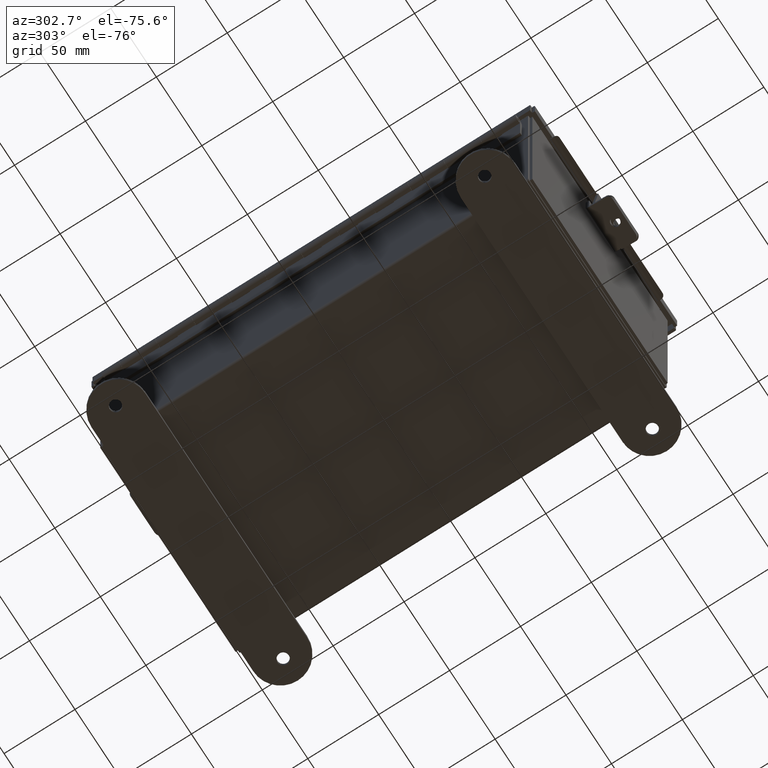
[diagram: clean part render]
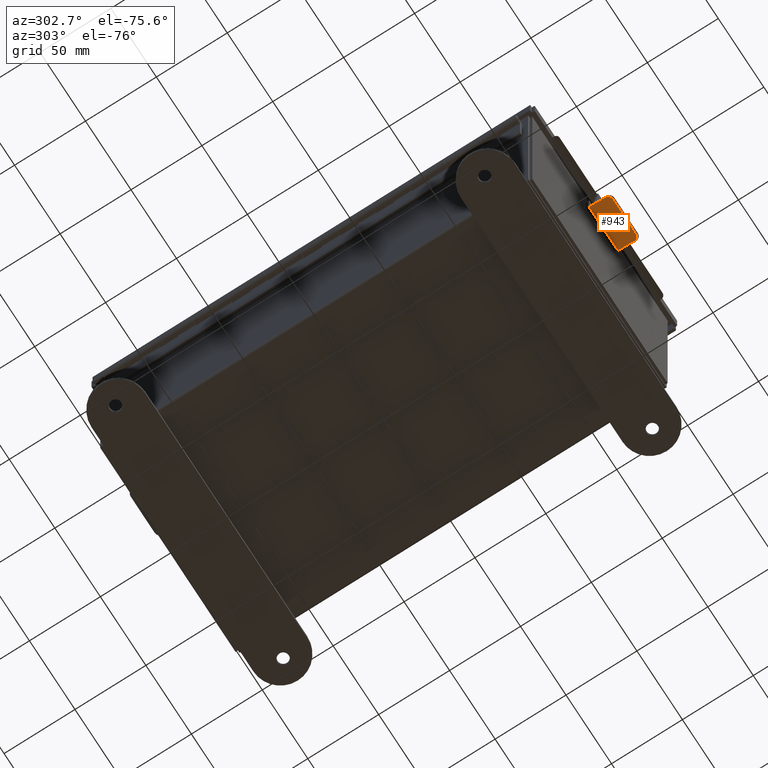
[diagram: same view with one face highlighted and labeled with its STEP entity id]
A machine part, auxiliary view. The second image highlights one B-rep face of the part: STEP entity #943.
In plain terms, the highlighted planar face has unit normal (0, -0.1564, 0.9877).
Its self-contained STEP definition (entity closure, byte-faithful):
#190 = VERTEX_POINT ( 'NONE', #11788 ) ;
#323 = CARTESIAN_POINT ( 'NONE',  ( 0.0000000000000000000, -0.3424819692434683000, 0.3187306097747185700 ) ) ;
#363 = DIRECTION ( 'NONE',  ( 0.0000000000000000000, 0.1564344650402347500, -0.9876883405951371000 ) ) ;
#469 = FACE_BOUND ( 'NONE', #5719, .T. ) ;
#562 = DIRECTION ( 'NONE',  ( 0.0000000000000000000, -0.1564344650402350000, 0.9876883405951369900 ) ) ;
#943 = ADVANCED_FACE ( 'NONE', ( #469, #6593 ), #11758, .F. ) ;
#953 = CARTESIAN_POINT ( 'NONE',  ( -0.5000000000000002200, -0.3825291922937684200, 0.5715788249670738000 ) ) ;
#1011 = EDGE_CURVE ( 'NONE', #190, #4520, #12374, .T. ) ;
#1057 = VERTEX_POINT ( 'NONE', #7371 ) ;
#1143 = DIRECTION ( 'NONE',  ( 0.0000000000000000000, -0.1564344650402344800, 0.9876883405951372200 ) ) ;
#1434 = ORIENTED_EDGE ( 'NONE', *, *, #5158, .F. ) ;
#1492 = DIRECTION ( 'NONE',  ( 0.0000000000000000000, -0.1564344650402344800, 0.9876883405951372200 ) ) ;
#1508 = EDGE_CURVE ( 'NONE', #5054, #190, #13260, .T. ) ;
#1709 = DIRECTION ( 'NONE',  ( 0.0000000000000000000, -0.9876883405951371000, -0.1564344650402347500 ) ) ;
#2003 = AXIS2_PLACEMENT_3D ( 'NONE', #4862, #6004, #14076 ) ;
#2339 = AXIS2_PLACEMENT_3D ( 'NONE', #14366, #7471, #562 ) ;
#2673 = CARTESIAN_POINT ( 'NONE',  ( 1.530808498934191800E-017, -0.3229276611134389000, 0.1952695672003264000 ) ) ;
#2680 = AXIS2_PLACEMENT_3D ( 'NONE', #323, #8389, #1492 ) ;
#2815 = VECTOR ( 'NONE', #363, 39.37007874015748100 ) ;
#2965 = AXIS2_PLACEMENT_3D ( 'NONE', #8594, #1709, #9762 ) ;
#3567 = EDGE_LOOP ( 'NONE', ( #8822, #11752, #8451, #11769, #8393, #9217 ) ) ;
#4520 = VERTEX_POINT ( 'NONE', #11730 ) ;
#4616 = CARTESIAN_POINT ( 'NONE',  ( 0.0000000000000000000, -0.3620362773734976400, 0.4421916523491106800 ) ) ;
#4787 = VERTEX_POINT ( 'NONE', #2673 ) ;
#4862 = CARTESIAN_POINT ( 'NONE',  ( -0.6250000000000003300, -0.3825291922937684200, 0.5715788249670738000 ) ) ;
#5054 = VERTEX_POINT ( 'NONE', #953 ) ;
#5158 = EDGE_CURVE ( 'NONE', #6981, #4787, #10712, .T. ) ;
#5434 = EDGE_CURVE ( 'NONE', #8397, #1057, #12885, .T. ) ;
#5445 = CIRCLE ( 'NONE', #2680, 0.1250000000000000000 ) ;
#5719 = EDGE_LOOP ( 'NONE', ( #1434, #12290 ) ) ;
#6004 = DIRECTION ( 'NONE',  ( -0.0000000000000000000, 0.9876883405951371000, 0.1564344650402347500 ) ) ;
#6111 = EDGE_CURVE ( 'NONE', #4787, #6981, #5445, .T. ) ;
#6309 = CARTESIAN_POINT ( 'NONE',  ( -0.6250000000000003300, -0.3825291922937684200, 0.5715788249670738000 ) ) ;
#6593 = FACE_OUTER_BOUND ( 'NONE', #3567, .T. ) ;
#6726 = VECTOR ( 'NONE', #8330, 39.37007874015748100 ) ;
#6981 = VERTEX_POINT ( 'NONE', #4616 ) ;
#7371 = CARTESIAN_POINT ( 'NONE',  ( 0.6249999999999997800, -0.3629748841637390800, 0.4481177823926816800 ) ) ;
#7471 = DIRECTION ( 'NONE',  ( 0.0000000000000000000, -0.9876883405951371000, -0.1564344650402347500 ) ) ;
#7734 = EDGE_CURVE ( 'NONE', #12231, #5054, #14461, .T. ) ;
#8042 = DIRECTION ( 'NONE',  ( 0.0000000000000000000, -0.9876883405951371000, -0.1564344650402347500 ) ) ;
#8330 = DIRECTION ( 'NONE',  ( 0.0000000000000000000, -0.1564344650402347500, 0.9876883405951371000 ) ) ;
#8335 = VECTOR ( 'NONE', #13189, 39.37007874015748100 ) ;
#8389 = DIRECTION ( 'NONE',  ( 0.0000000000000000000, -0.9876883405951371000, -0.1564344650402347500 ) ) ;
#8393 = ORIENTED_EDGE ( 'NONE', *, *, #5434, .T. ) ;
#8397 = VERTEX_POINT ( 'NONE', #13269 ) ;
#8423 = CARTESIAN_POINT ( 'NONE',  ( -0.6250000000000003300, -0.3825291922937684200, 0.5715788249670738000 ) ) ;
#8451 = ORIENTED_EDGE ( 'NONE', *, *, #1011, .T. ) ;
#8594 = CARTESIAN_POINT ( 'NONE',  ( -0.5000000000000002200, -0.3629748841637390800, 0.4481177823926816800 ) ) ;
#8822 = ORIENTED_EDGE ( 'NONE', *, *, #7734, .T. ) ;
#9217 = ORIENTED_EDGE ( 'NONE', *, *, #11431, .T. ) ;
#9762 = DIRECTION ( 'NONE',  ( 0.0000000000000000000, -0.1564344650402350000, 0.9876883405951369900 ) ) ;
#10389 = VECTOR ( 'NONE', #14141, 39.37007874015748100 ) ;
#10712 = CIRCLE ( 'NONE', #14905, 0.1250000000000000000 ) ;
#11431 = EDGE_CURVE ( 'NONE', #1057, #12231, #12858, .T. ) ;
#11730 = CARTESIAN_POINT ( 'NONE',  ( -0.6250000000000003300, -0.2906256832361269700, -0.008677094549546533100 ) ) ;
#11752 = ORIENTED_EDGE ( 'NONE', *, *, #1508, .T. ) ;
#11758 = PLANE ( 'NONE',  #2003 ) ;
#11769 = ORIENTED_EDGE ( 'NONE', *, *, #13938, .F. ) ;
#11770 = CARTESIAN_POINT ( 'NONE',  ( 0.6249999999999997800, -0.3825291922937684200, 0.5715788249670738000 ) ) ;
#11788 = CARTESIAN_POINT ( 'NONE',  ( -0.6250000000000003300, -0.3629748841637390800, 0.4481177823926816800 ) ) ;
#12231 = VERTEX_POINT ( 'NONE', #13834 ) ;
#12290 = ORIENTED_EDGE ( 'NONE', *, *, #6111, .F. ) ;
#12374 = LINE ( 'NONE', #8423, #2815 ) ;
#12858 = CIRCLE ( 'NONE', #2339, 0.1250000000000000300 ) ;
#12885 = LINE ( 'NONE', #11770, #6726 ) ;
#12949 = CARTESIAN_POINT ( 'NONE',  ( -0.6250000000000003300, -0.2906256832361269700, -0.008677094549546522700 ) ) ;
#13189 = DIRECTION ( 'NONE',  ( -1.000000000000000000, 0.0000000000000000000, 0.0000000000000000000 ) ) ;
#13260 = CIRCLE ( 'NONE', #2965, 0.1250000000000000300 ) ;
#13269 = CARTESIAN_POINT ( 'NONE',  ( 0.6249999999999997800, -0.2906256832361269700, -0.008677094549546618100 ) ) ;
#13466 = LINE ( 'NONE', #12949, #10389 ) ;
#13483 = CARTESIAN_POINT ( 'NONE',  ( 0.0000000000000000000, -0.3424819692434683000, 0.3187306097747185700 ) ) ;
#13834 = CARTESIAN_POINT ( 'NONE',  ( 0.4999999999999997200, -0.3825291922937684200, 0.5715788249670738000 ) ) ;
#13938 = EDGE_CURVE ( 'NONE', #8397, #4520, #13466, .T. ) ;
#14076 = DIRECTION ( 'NONE',  ( 0.0000000000000000000, -0.1564344650402347500, 0.9876883405951371000 ) ) ;
#14141 = DIRECTION ( 'NONE',  ( -1.000000000000000000, -1.333134263018087700E-017, 8.417078472395434900E-017 ) ) ;
#14366 = CARTESIAN_POINT ( 'NONE',  ( 0.4999999999999997200, -0.3629748841637390800, 0.4481177823926816800 ) ) ;
#14461 = LINE ( 'NONE', #6309, #8335 ) ;
#14905 = AXIS2_PLACEMENT_3D ( 'NONE', #13483, #8042, #1143 ) ;